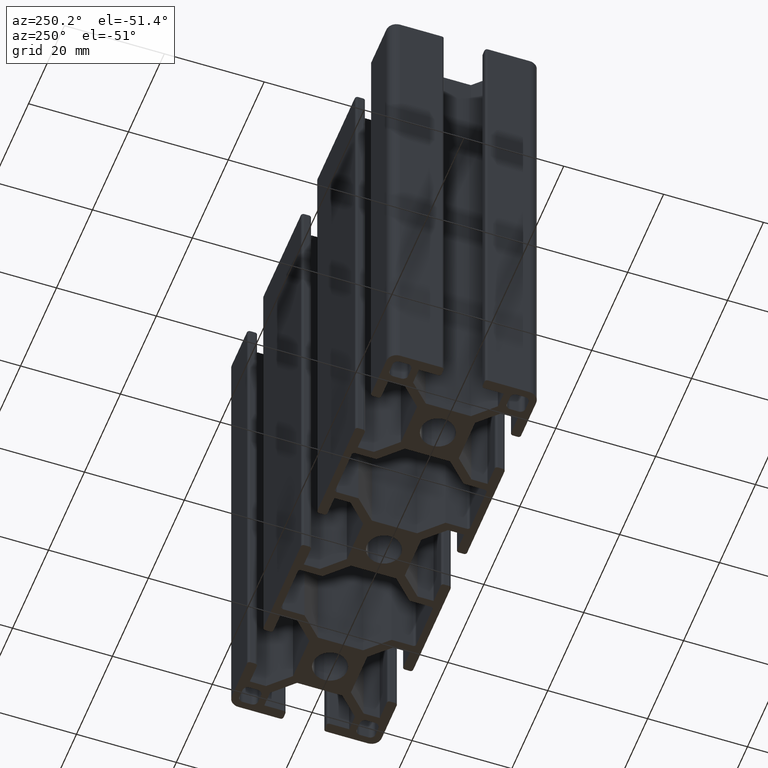
[diagram: clean part render]
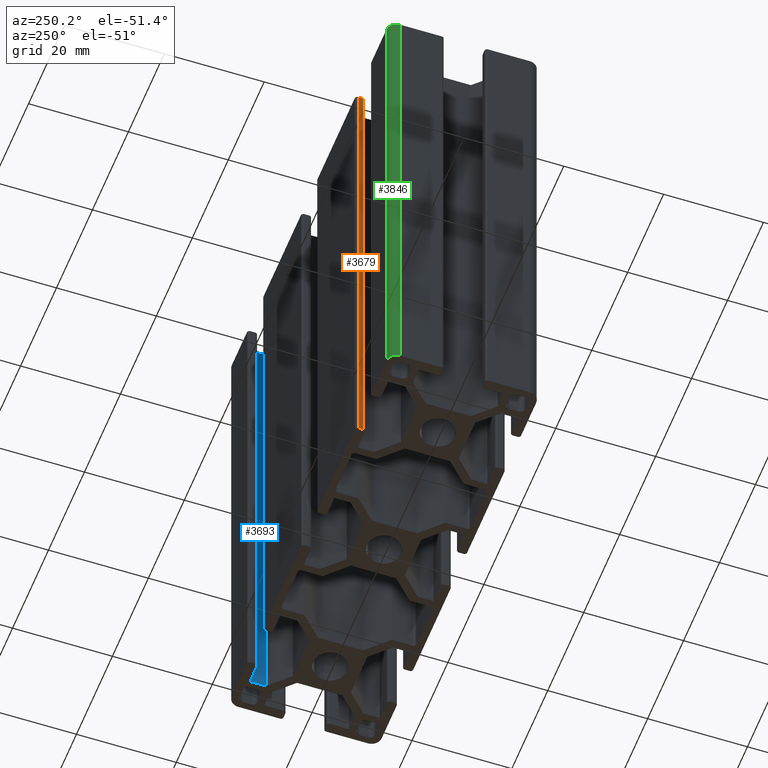
[diagram: same view with three faces highlighted in distinct colors, each labeled with its STEP entity id]
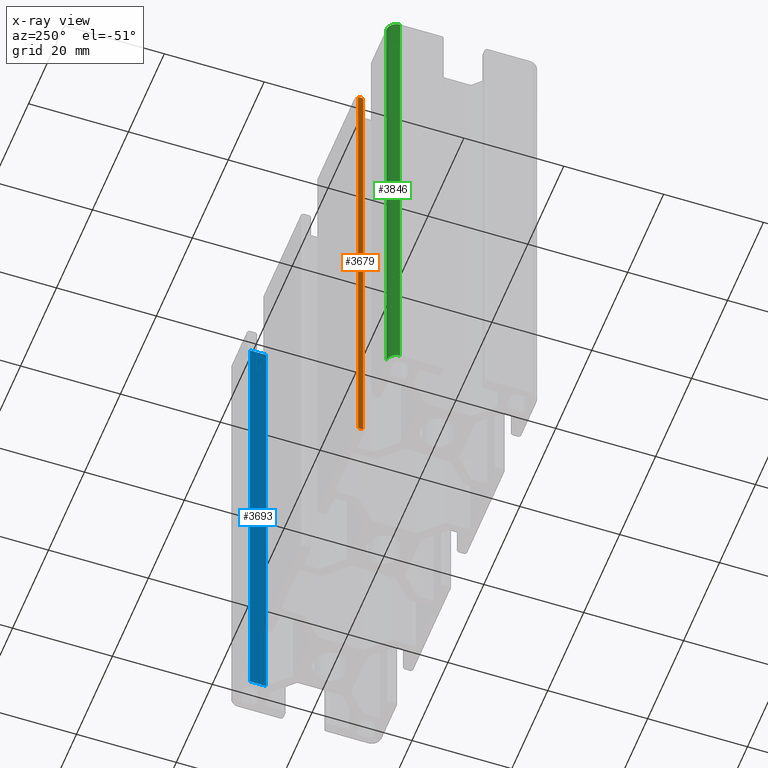
[diagram: x-ray of the same camera — body ghosted, the three highlighted faces saturated]
A machine part, auxiliary view with three faces highlighted in distinct colors.
The next image is the same camera in x-ray (body ghosted, the three faces saturated) — at least one of them is partly hidden behind the body in this view.
Their STEP definitions:

[orange] entity #3679 — the highlighted planar face has unit normal (1, 0, 0).
#242=FACE_OUTER_BOUND('',#431,.T.);
#431=EDGE_LOOP('',(#2488,#2489,#2490,#2491));
#665=LINE('',#5337,#1097);
#666=LINE('',#5340,#1098);
#667=LINE('',#5342,#1099);
#668=LINE('',#5343,#1100);
#1097=VECTOR('',#4265,100.);
#1098=VECTOR('',#4268,1.);
#1099=VECTOR('',#4269,1.);
#1100=VECTOR('',#4270,100.);
#1521=VERTEX_POINT('',#5331);
#1523=VERTEX_POINT('',#5335);
#1524=VERTEX_POINT('',#5339);
#1525=VERTEX_POINT('',#5341);
#1913=EDGE_CURVE('',#1523,#1521,#665,.T.);
#1914=EDGE_CURVE('',#1521,#1524,#666,.T.);
#1915=EDGE_CURVE('',#1525,#1523,#667,.T.);
#1916=EDGE_CURVE('',#1525,#1524,#668,.T.);
#2488=ORIENTED_EDGE('',*,*,#1914,.F.);
#2489=ORIENTED_EDGE('',*,*,#1913,.F.);
#2490=ORIENTED_EDGE('',*,*,#1915,.F.);
#2491=ORIENTED_EDGE('',*,*,#1916,.T.);
#3548=PLANE('',#3880);
#3679=ADVANCED_FACE('',(#242),#3548,.F.);
#3880=AXIS2_PLACEMENT_3D('',#5338,#4266,#4267);
#4265=DIRECTION('',(0.,0.,1.));
#4266=DIRECTION('center_axis',(1.,0.,0.));
#4267=DIRECTION('ref_axis',(0.,0.,-1.));
#4268=DIRECTION('',(0.,-1.,0.));
#4269=DIRECTION('',(0.,1.,0.));
#4270=DIRECTION('',(0.,0.,1.));
#5331=CARTESIAN_POINT('',(-25.9,14.5,100.));
#5335=CARTESIAN_POINT('',(-25.9,14.5,0.));
#5337=CARTESIAN_POINT('',(-25.9,14.5,0.));
#5338=CARTESIAN_POINT('Origin',(-25.9,14.5,0.));
#5339=CARTESIAN_POINT('',(-25.9,13.5,100.));
#5340=CARTESIAN_POINT('',(-25.9,7.25000166499999,100.));
#5341=CARTESIAN_POINT('',(-25.9,13.5,0.));
#5342=CARTESIAN_POINT('',(-25.9,7.25000166499999,0.));
#5343=CARTESIAN_POINT('',(-25.9,13.5,0.));

[blue] entity #3693 — the highlighted planar face has unit normal (1, 0, 0).
#256=FACE_OUTER_BOUND('',#445,.T.);
#445=EDGE_LOOP('',(#2544,#2545,#2546,#2547));
#701=LINE('',#5423,#1133);
#703=LINE('',#5427,#1135);
#704=LINE('',#5429,#1136);
#705=LINE('',#5430,#1137);
#1133=VECTOR('',#4341,100.);
#1135=VECTOR('',#4345,3.22699999999999);
#1136=VECTOR('',#4346,100.);
#1137=VECTOR('',#4347,3.22699999999999);
#1552=VERTEX_POINT('',#5420);
#1553=VERTEX_POINT('',#5422);
#1554=VERTEX_POINT('',#5426);
#1555=VERTEX_POINT('',#5428);
#1955=EDGE_CURVE('',#1553,#1552,#701,.T.);
#1957=EDGE_CURVE('',#1554,#1552,#703,.T.);
#1958=EDGE_CURVE('',#1555,#1554,#704,.T.);
#1959=EDGE_CURVE('',#1553,#1555,#705,.T.);
#2544=ORIENTED_EDGE('',*,*,#1957,.F.);
#2545=ORIENTED_EDGE('',*,*,#1958,.F.);
#2546=ORIENTED_EDGE('',*,*,#1959,.F.);
#2547=ORIENTED_EDGE('',*,*,#1955,.T.);
#3559=PLANE('',#3900);
#3693=ADVANCED_FACE('',(#256),#3559,.F.);
#3900=AXIS2_PLACEMENT_3D('',#5425,#4343,#4344);
#4341=DIRECTION('',(0.,0.,1.));
#4343=DIRECTION('center_axis',(1.,0.,0.));
#4344=DIRECTION('ref_axis',(0.,0.,-1.));
#4345=DIRECTION('',(0.,-1.,0.));
#4346=DIRECTION('',(0.,0.,1.));
#4347=DIRECTION('',(0.,1.,0.));
#5420=CARTESIAN_POINT('',(38.5,9.77300000000001,100.));
#5422=CARTESIAN_POINT('',(38.5,9.77300000000001,0.));
#5423=CARTESIAN_POINT('',(38.5,9.77300000000001,0.));
#5425=CARTESIAN_POINT('Origin',(38.5,13.,0.));
#5426=CARTESIAN_POINT('',(38.5,13.,100.));
#5427=CARTESIAN_POINT('',(38.5,6.50000166499998,100.));
#5428=CARTESIAN_POINT('',(38.5,13.,0.));
#5429=CARTESIAN_POINT('',(38.5,13.,0.));
#5430=CARTESIAN_POINT('',(38.5,6.50000166499998,0.));

[green] entity #3846 — the highlighted cylindrical surface (edge-blend (fillet) strip) has radius 2 mm, axis along (0, 0, 1).
#154=CIRCLE('',#4153,2.00000000000001);
#160=CIRCLE('',#4162,2.00000000000001);
#223=CYLINDRICAL_SURFACE('',#4161,2.00000000000001);
#409=FACE_OUTER_BOUND('',#610,.T.);
#610=EDGE_LOOP('',(#3333,#3334,#3335,#3336));
#1030=LINE('',#6293,#1462);
#1036=LINE('',#6305,#1468);
#1462=VECTOR('',#5160,100.);
#1468=VECTOR('',#5170,100.);
#1848=VERTEX_POINT('',#6290);
#1849=VERTEX_POINT('',#6292);
#1852=VERTEX_POINT('',#6302);
#1853=VERTEX_POINT('',#6304);
#2386=EDGE_CURVE('',#1848,#1849,#1030,.T.);
#2392=EDGE_CURVE('',#1853,#1852,#1036,.T.);
#2407=EDGE_CURVE('',#1852,#1849,#154,.T.);
#2416=EDGE_CURVE('',#1853,#1848,#160,.T.);
#3333=ORIENTED_EDGE('',*,*,#2407,.T.);
#3334=ORIENTED_EDGE('',*,*,#2386,.F.);
#3335=ORIENTED_EDGE('',*,*,#2416,.F.);
#3336=ORIENTED_EDGE('',*,*,#2392,.T.);
#3846=ADVANCED_FACE('',(#409),#223,.T.);
#4153=AXIS2_PLACEMENT_3D('',#6332,#5197,#5198);
#4161=AXIS2_PLACEMENT_3D('',#6345,#5216,#5217);
#4162=AXIS2_PLACEMENT_3D('',#6346,#5218,#5219);
#5160=DIRECTION('',(0.,0.,1.));
#5170=DIRECTION('',(0.,0.,1.));
#5197=DIRECTION('center_axis',(0.,0.,-1.));
#5198=DIRECTION('ref_axis',(-7.79999975719627E-8,0.999999999999997,0.));
#5216=DIRECTION('center_axis',(0.,0.,1.));
#5217=DIRECTION('ref_axis',(-7.79999975719627E-8,0.999999999999997,0.));
#5218=DIRECTION('center_axis',(0.,0.,-1.));
#5219=DIRECTION('ref_axis',(-7.79999975719627E-8,0.999999999999997,0.));
#6290=CARTESIAN_POINT('',(-43.,14.9999999760001,0.));
#6292=CARTESIAN_POINT('',(-43.,14.9999999760001,100.));
#6293=CARTESIAN_POINT('',(-43.,14.9999999760001,0.));
#6302=CARTESIAN_POINT('',(-44.9999998440001,13.,100.));
#6304=CARTESIAN_POINT('',(-44.9999998440001,13.,0.));
#6305=CARTESIAN_POINT('',(-44.9999998440001,13.,0.));
#6332=CARTESIAN_POINT('Origin',(-42.999999844,12.999999976,100.));
#6345=CARTESIAN_POINT('Origin',(-42.999999844,12.999999976,0.));
#6346=CARTESIAN_POINT('Origin',(-42.999999844,12.999999976,0.));